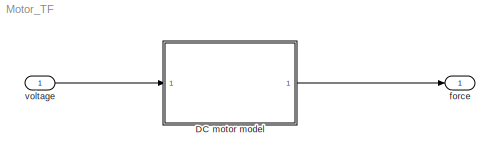
MODEL Motor_TF
KIND model
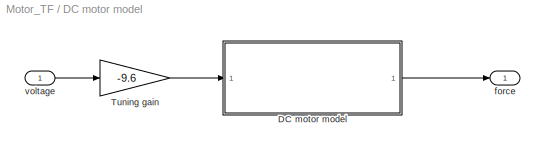
BLOCK [SubSystem] DC motor model
  FunctionWithSeparateData = off
  MaskHideContents = off
  MinAlgLoopOccurrences = off
  Opaque = off
  Ports = [1, 1]
  PropExecContextOutsideSubsystem = off
  RTWSystemCode = Auto
  RequestExecContextInheritance = off
  SID = 60
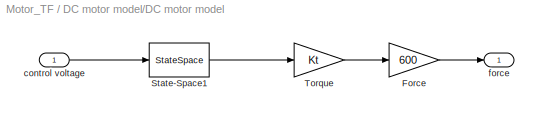
BLOCK [SubSystem] DC motor model/DC motor model
  FunctionWithSeparateData = off
  MaskCallbackString = |||||
  MaskDisplay = disp('DC motor')
  MaskEnableString = on,on,on,on,on,on
  MaskHideContents = off
  MaskIconFrame = on
  MaskIconOpaque = on
  MaskIconRotate = none
  MaskIconUnits = autoscale
  MaskPortRotate = default
  MaskPromptString = Moment of inertia|Torque constant|Electromotive force constant|Linear approximation of viscous friction|Electrical circuit resistance|Electrical circuit inductance
  MaskStyleString = edit,edit,edit,edit,edit,edit
  MaskToolTipString = on,on,on,on,on,on
  MaskTunableValueString = on,on,on,on,on,on
  MaskValueString = 0.0000140|0.05|0.05|0.000001|2.5|0.0025
  MaskVariables = J=@1;Kt=@2;Kb=@3;d=@4;R=@5;L=@6;
  MaskVisibilityString = on,on,on,on,on,on
  MinAlgLoopOccurrences = off
  Opaque = off
  Ports = [1, 1]
  PropExecContextOutsideSubsystem = off
  RTWSystemCode = Auto
  RequestExecContextInheritance = off
  SID = 64
BLOCK [Gain] DC motor model/DC motor model/Force
  Gain = 600
  OutDataTypeStr = Inherit: Inherit via internal rule
  ParamDataTypeStr = Inherit: Inherit via internal rule
  SID = 66
  SaturateOnIntegerOverflow = off
BLOCK [StateSpace] DC motor model/DC motor model/State-Space1
  A = [-d/J Kt/J;-Kb/L -R/L]
  B = [0; 1/L]
  C = [0 1]
  D = 0
  SID = 67
BLOCK [Gain] DC motor model/DC motor model/Torque
  Gain = Kt
  OutDataTypeStr = Inherit: Inherit via internal rule
  ParamDataTypeStr = Inherit: Inherit via internal rule
  SID = 68
  SaturateOnIntegerOverflow = off
BLOCK [Inport] DC motor model/DC motor model/control voltage
  IconDisplay = Port number
  SID = 65
BLOCK [Outport] DC motor model/DC motor model/force
  IconDisplay = Port number
  SID = 69
BLOCK [Gain] DC motor model/Tuning gain
  Gain = -9.6
  OutDataTypeStr = Inherit: Inherit via internal rule
  ParamDataTypeStr = Inherit: Inherit via internal rule
  SID = 70
  SaturateOnIntegerOverflow = off
BLOCK [Outport] DC motor model/force
  IconDisplay = Port number
  SID = 71
BLOCK [Inport] DC motor model/voltage
  IconDisplay = Port number
  SID = 63
BLOCK [Outport] force
  IconDisplay = Port number
  SID = 78
BLOCK [Inport] voltage
  IconDisplay = Port number
  SID = 79
LINE DC motor model/DC motor model/Force:1 -> DC motor model/DC motor model/force:1
LINE DC motor model/DC motor model/State-Space1:1 -> DC motor model/DC motor model/Torque:1
LINE DC motor model/DC motor model/Torque:1 -> DC motor model/DC motor model/Force:1
LINE DC motor model/DC motor model/control voltage:1 -> DC motor model/DC motor model/State-Space1:1
LINE DC motor model/DC motor model:1 -> DC motor model/force:1
LINE DC motor model/Tuning gain:1 -> DC motor model/DC motor model:1
LINE DC motor model/voltage:1 -> DC motor model/Tuning gain:1
LINE DC motor model:1 -> force:1
LINE voltage:1 -> DC motor model:1
